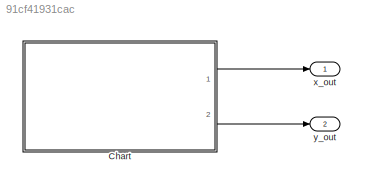
MODEL slx_91cf41931cac
KIND model
CONFIG AbsTol = auto
CONFIG EnableMultiTasking = off
CONFIG FixedStep = timeStepMax
CONFIG MaxStep = timeStepMax
CONFIG MinStep = auto
CONFIG RelTol = 1e-3
CONFIG SampleTimeConstraint = Unconstrained
CONFIG SolverName = FixedStepAuto
CONFIG StartTime = 0.0
CONFIG StopTime = timeFinal
WORKSPACE source: mxarray member
WORKSPACE x0 = 5
WORKSPACE y0 = 5
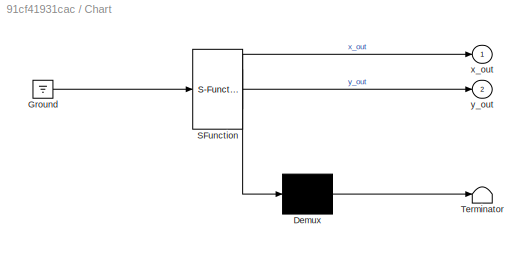
BLOCK [SubSystem] Chart
  ErrorFcn = Stateflow.Translate.translate
  PermitHierarchicalResolution = ExplicitOnly
  Ports = [0, 2]
  RequestExecContextInheritance = off
  SFBlockType = Chart
  TreatAsAtomicUnit = on
BLOCK [Demux] Chart/ Demux 
  Outputs = 1
  Ports = [1, 1]
BLOCK [Ground] Chart/ Ground 
BLOCK [S-Function] Chart/ SFunction 
  EnableBusSupport = on
  FunctionName = sf_sfun
  Parameters = a,b
  PortCounts = [1 3]
  Ports = [1, 3]
  SFcnIsStateOwnerBlock = off
  SFunctionDeploymentMode = off
  Tag = Stateflow S-Function 3
BLOCK [Terminator] Chart/ Terminator 
BLOCK [Outport] Chart/x_out
BLOCK [Outport] Chart/y_out
  Port = 2
BLOCK [Outport] x_out
  SignalName = xOut
BLOCK [Outport] y_out
  Port = 2
  SignalName = yOut
LINE Chart:1 -> x_out:1
LINE Chart:2 -> y_out:1
CHART Chart states=4 transitions=9
  STATE_LABEL 'loc4\ndu:\n  % derivatives\n  % make x, y as continuous\n  x_dot = -2.0 * x + 1.4;\n  y_dot = -1.0 * y - 0.7;\nexit:\n      x_out=x;\n      y_out=y;'
  STATE_LABEL 'loc3\ndu:\n    % derivatives\n    x_dot = -2.0 * x - 1.4;\n    y_dot = -1.0 * y + 0.7;\nexit:\n      x_out=x;\n      y_out=y;\n'
  STATE_LABEL 'loc1\ndu:\n  % derivatives\n  x_dot = -2.0 * x + 1.4;\n  y_dot = -1.0 * y - 0.7;\nexit:\n      x_out=x;\n      y_out=y;'
  STATE_LABEL 'loc2\ndu:\n  x_dot = -2.0 * x - 1.4;\n  y_dot = -1.0 * y + 0.7;\nexit:\n      x_out=x;\n      y_out=y;'
CHART  states=0 transitions=0
